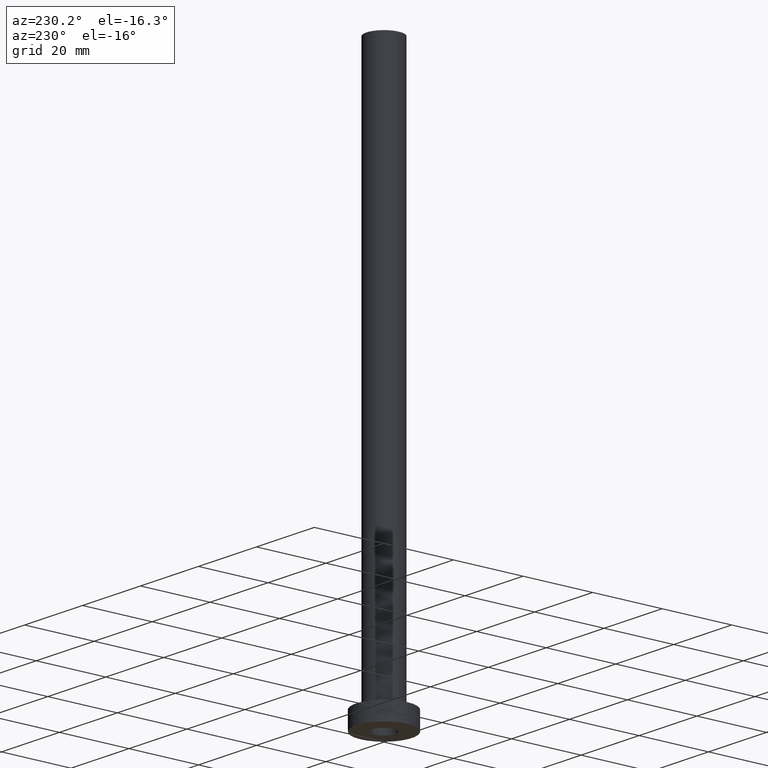
[diagram: clean part render]
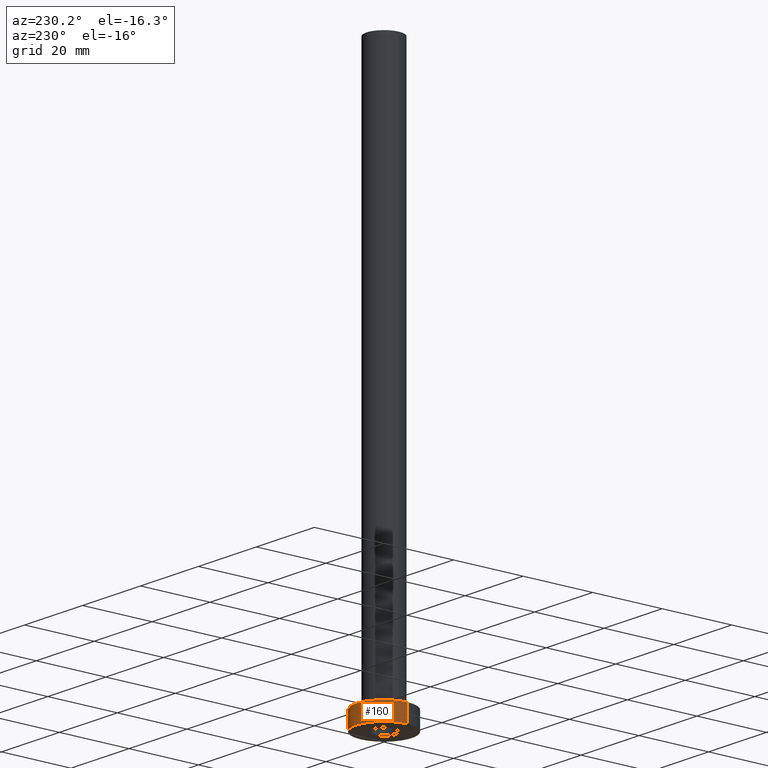
[diagram: same view with one face highlighted and labeled with its STEP entity id]
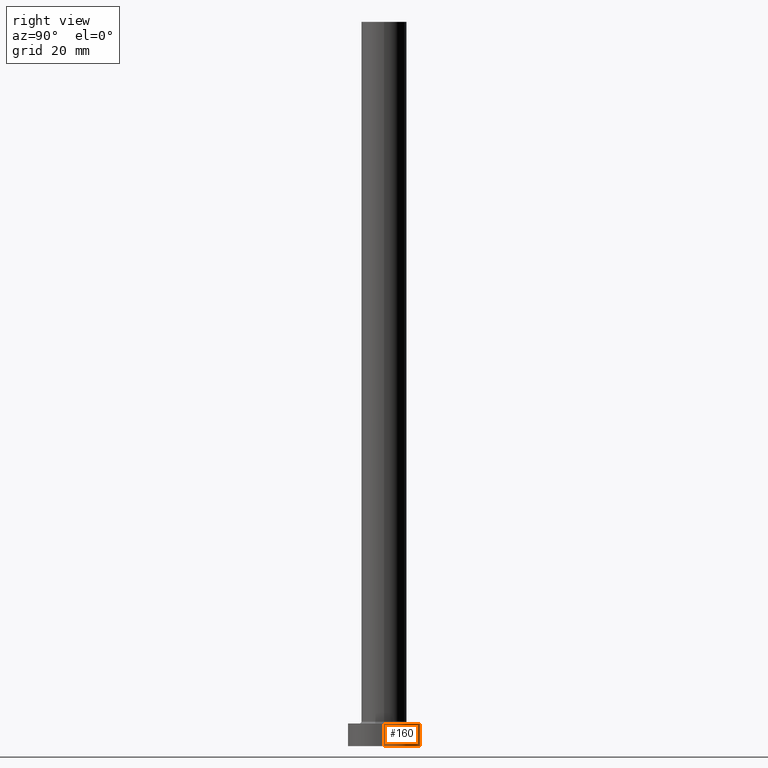
[diagram: same view with one face highlighted and labeled with its STEP entity id]
A machine part, auxiliary view. The second image highlights one B-rep face of the part: STEP entity #160.
A second angle (right view) of the same face is appended — the face is thin or edge-on in the first view.
In plain terms, the highlighted cylindrical surface (edge-blend (fillet) strip) has radius 8 mm, axis along (-0, -0, -1).
Its self-contained STEP definition (entity closure, byte-faithful):
#10 = VERTEX_POINT ( 'NONE', #149 ) ;
#15 = DIRECTION ( 'NONE',  ( 0.000000000000000000, 0.000000000000000000, 1.000000000000000000 ) ) ;
#62 = LINE ( 'NONE', #377, #293 ) ;
#111 = ORIENTED_EDGE ( 'NONE', *, *, #384, .F. ) ;
#132 = CIRCLE ( 'NONE', #168, 8.000000000000000000 ) ;
#136 = EDGE_LOOP ( 'NONE', ( #111, #372, #241, #434 ) ) ;
#138 = CARTESIAN_POINT ( 'NONE',  ( -8.000000000000000000, 0.000000000000000000, 5.000000000000000000 ) ) ;
#140 = DIRECTION ( 'NONE',  ( -0.000000000000000000, -0.000000000000000000, -1.000000000000000000 ) ) ;
#149 = CARTESIAN_POINT ( 'NONE',  ( 8.000000000000000000, 9.797174393178825657E-16, 5.000000000000000000 ) ) ;
#160 = ADVANCED_FACE ( 'NONE', ( #435 ), #189, .T. ) ;
#162 = LINE ( 'NONE', #138, #447 ) ;
#168 = AXIS2_PLACEMENT_3D ( 'NONE', #449, #15, #411 ) ;
#173 = CARTESIAN_POINT ( 'NONE',  ( 0.000000000000000000, 0.000000000000000000, 5.000000000000000000 ) ) ;
#178 = DIRECTION ( 'NONE',  ( -0.000000000000000000, -0.000000000000000000, -1.000000000000000000 ) ) ;
#183 = DIRECTION ( 'NONE',  ( 1.000000000000000000, 0.000000000000000000, 0.000000000000000000 ) ) ;
#189 = CYLINDRICAL_SURFACE ( 'NONE', #325, 8.000000000000000000 ) ;
#212 = VERTEX_POINT ( 'NONE', #291 ) ;
#241 = ORIENTED_EDGE ( 'NONE', *, *, #330, .T. ) ;
#263 = EDGE_CURVE ( 'NONE', #212, #351, #162, .T. ) ;
#285 = CIRCLE ( 'NONE', #343, 8.000000000000000000 ) ;
#291 = CARTESIAN_POINT ( 'NONE',  ( -8.000000000000000000, 0.000000000000000000, 5.000000000000000000 ) ) ;
#293 = VECTOR ( 'NONE', #337, 1000.000000000000000 ) ;
#307 = EDGE_CURVE ( 'NONE', #10, #350, #62, .T. ) ;
#314 = DIRECTION ( 'NONE',  ( -1.000000000000000000, 0.000000000000000000, 0.000000000000000000 ) ) ;
#325 = AXIS2_PLACEMENT_3D ( 'NONE', #173, #178, #314 ) ;
#330 = EDGE_CURVE ( 'NONE', #350, #351, #285, .T. ) ;
#337 = DIRECTION ( 'NONE',  ( -0.000000000000000000, -0.000000000000000000, -1.000000000000000000 ) ) ;
#343 = AXIS2_PLACEMENT_3D ( 'NONE', #356, #344, #183 ) ;
#344 = DIRECTION ( 'NONE',  ( 0.000000000000000000, 0.000000000000000000, 1.000000000000000000 ) ) ;
#350 = VERTEX_POINT ( 'NONE', #369 ) ;
#351 = VERTEX_POINT ( 'NONE', #404 ) ;
#356 = CARTESIAN_POINT ( 'NONE',  ( 0.000000000000000000, 0.000000000000000000, 0.000000000000000000 ) ) ;
#369 = CARTESIAN_POINT ( 'NONE',  ( 8.000000000000000000, 9.797174393178825657E-16, 0.000000000000000000 ) ) ;
#372 = ORIENTED_EDGE ( 'NONE', *, *, #307, .T. ) ;
#377 = CARTESIAN_POINT ( 'NONE',  ( 8.000000000000000000, 9.797174393178825657E-16, 5.000000000000000000 ) ) ;
#384 = EDGE_CURVE ( 'NONE', #10, #212, #132, .T. ) ;
#404 = CARTESIAN_POINT ( 'NONE',  ( -8.000000000000000000, 0.000000000000000000, 0.000000000000000000 ) ) ;
#411 = DIRECTION ( 'NONE',  ( 1.000000000000000000, 0.000000000000000000, 0.000000000000000000 ) ) ;
#434 = ORIENTED_EDGE ( 'NONE', *, *, #263, .F. ) ;
#435 = FACE_OUTER_BOUND ( 'NONE', #136, .T. ) ;
#447 = VECTOR ( 'NONE', #140, 1000.000000000000000 ) ;
#449 = CARTESIAN_POINT ( 'NONE',  ( 0.000000000000000000, 0.000000000000000000, 5.000000000000000000 ) ) ;